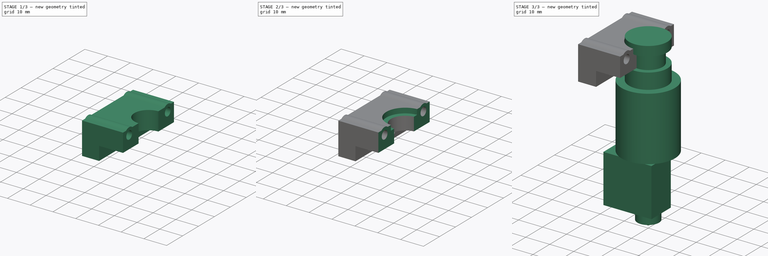
[diagram: build sequence overview — one tinted view per stage of 3, left to right]
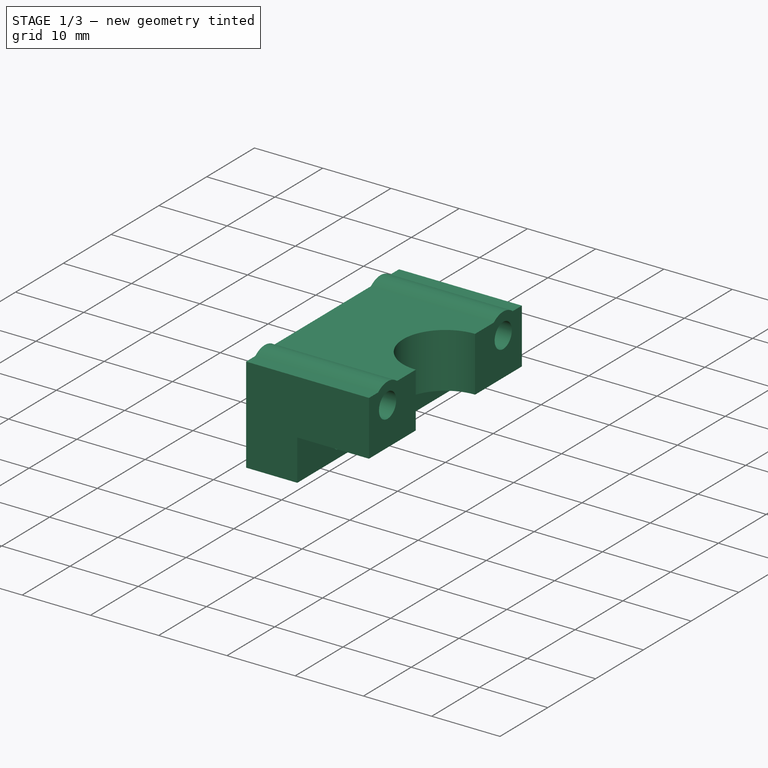
[diagram: stage 1 of 3 — iso view after this stage's code; geometry added in this stage tinted green]
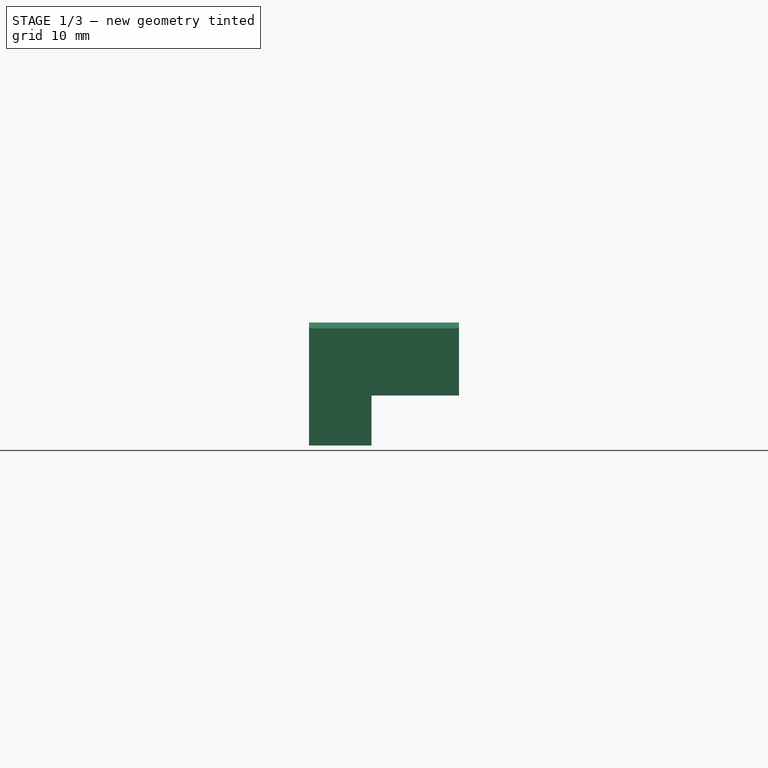
[diagram: stage 1 of 3 — front view after this stage's code; geometry added in this stage tinted green]
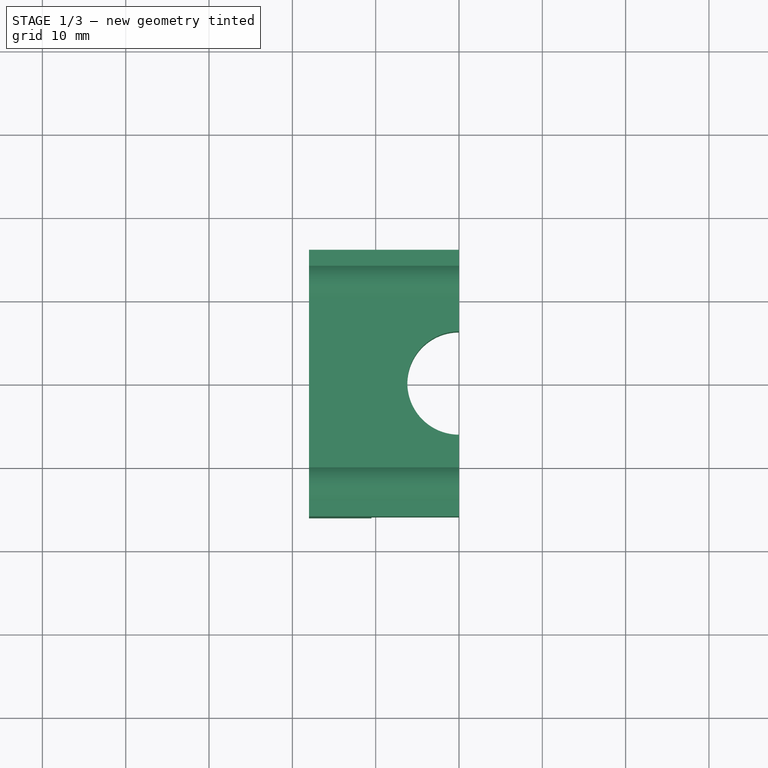
[diagram: stage 1 of 3 — top view after this stage's code; geometry added in this stage tinted green]
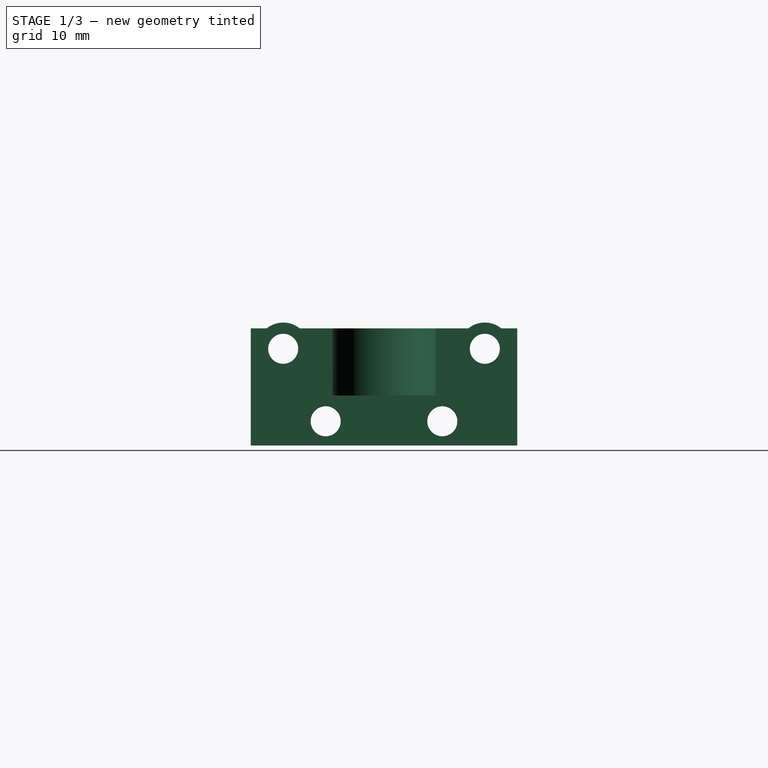
[diagram: stage 1 of 3 — right view after this stage's code; geometry added in this stage tinted green]
FCSTD DOCUMENT  (FreeCAD 0.20R29603 (Git))
Label: V6火山+5015方案
License: All rights reserved
LicenseURL: http://en.wikipedia.org/wiki/All_rights_reserved
objects: Part::Feature×13, Sketcher::SketchObject×7, PartDesign::Pocket×4, PartDesign::Pad×3, PartDesign::Body×2, PartDesign::Revolution×1, App::Part×1
note: 38 computed .brp shape members not serialized (recipe doc carries the construction recipe); baked Part::Feature solids carry a one-line shape summary decoded from their .brp

FEATURE [PartDesign::Body] Body002  label="E3DV6火山（玻璃热敏）"
  Group = -> [Sketch015,Revolution,Sketch016,Pad006,Pad007]
  Origin = -> Origin002
  Tip = -> Pad007
FEATURE [Part::Feature] Part__Feature166  label="<unrecoverable-encoding: 13 bytes cea2d18dd09ecebbbfaab9d6... md5=9adbc4b6>A125V003"
  Placement = pos=(23.9,-14.5,21.31) rot=(0,0,-1;1.5708rad)
  shape: bbox 13.5 x 14.59 x 5.62 mm, 42 faces (baked)
FEATURE [Part::Feature] Part__Feature167  label="MGN12H»¬¿002"
  Placement = pos=(0,-19,0) rot=(0,-1,0;1.5708rad)
  shape: bbox 45.4 x 10 x 27 mm, 34 faces (baked)
FEATURE [Part::Feature] Part__Feature169  label="ɢɈ¹ܰ²װ°"
  Placement = pos=(0,-19.5,16.5) rot=(0,0,1;0rad)
  shape: bbox 54 x 39 x 4 mm, 68 faces (baked)
FEATURE [Part::Feature] Part__Feature172  label="同步带压片"
  Placement = pos=(-16,-29,21) rot=(0,0,1;0rad)
  shape: bbox 8 x 16 x 3 mm, 12 faces (baked)
FEATURE [Part::Feature] Part__Feature173  label="同步带压片001"
  Placement = pos=(16,-29,21) rot=(0,1,0;3.14159rad)
  shape: bbox 8 x 16 x 3 mm, 12 faces (baked)
FEATURE [Part::Feature] Part__Feature174  label="42步进电机004"
  Placement = pos=(-3.675,23.5,12) rot=(0,0,1;0rad)
  shape: bbox 42.3 x 44.3 x 62 mm, 50 faces (baked)
FEATURE [Part::Feature] Part__Feature175  label="42步进电机支架"
  Placement = pos=(-3.675,23.5,14) rot=(0,0,1;0rad)
  shape: bbox 63 x 45 x 40 mm, 42 faces (baked)
FEATURE [Part::Feature] Part__Feature176  label="MGN12H滑筷棯接颁灅住"
  Placement = pos=(0,0,0) rot=(0.57735,-0.57735,-0.57735;2.0944rad)
  shape: bbox 63 x 6 x 28 mm, 64 faces (baked)
FEATURE [Part::Feature] Part__Feature177  label="BMG挤出机"
  Placement = pos=(0,2.35,36.5) rot=(0,0,1;0rad)
  shape: bbox 58 x 75 x 33.5 mm, 84 faces (baked)
FEATURE [Part::Feature] Part__Feature179  label="内六角平圆头螺钉M3¡Á029"
  Placement = pos=(0,-3,18.5) rot=(1,0,0;1.5708rad)
  shape: bbox 6.17 x 6.17 x 12.2 mm, 24 faces (baked)
FEATURE [Part::Feature] Part__Feature180  label="内六角平圆头螺钉M3¡Á030"
  Placement = pos=(15,-3,18.5) rot=(1,0,0;1.5708rad)
  shape: bbox 6.17 x 6.17 x 12.2 mm, 24 faces (baked)
FEATURE [Part::Feature] Part__Feature178  label="内六角平圆头螺钉M3¡Á028"
  Placement = pos=(-15,-3,18.5) rot=(1,0,0;1.5708rad)
  shape: bbox 6.17 x 6.17 x 12.2 mm, 24 faces (baked)
FEATURE [App::Part] CR10________________________1  label="CR10近程喷嘴模块1"
  Group = -> [Part__Feature166,Part__Feature167,Part__Feature169,Part__Feature172,Part__Feature173,Part__Feature174,Part__Feature175,Part__Feature176,Part__Feature177,Part__Feature178,Part__Feature179,Part__Feature180]
  Origin = -> Origin006
  Placement = pos=(-36.5,0,8.1) rot=(0.57735,0.57735,0.57735;2.0944rad)
FEATURE [Sketcher::SketchObject] Sketch017
  FullyConstrained = true
  MapMode = 5
  Placement = pos=(0,0,0) rot=(0.57735,0.57735,0.57735;2.0944rad)
  Support = -> [YZ_Plane007]
  sketch-geometry (18):
    g0: LineSegment StartX=-16 StartY=2.25 StartZ=0 EndX=-16 EndY=0 EndZ=0
    g1: LineSegment StartX=-16 StartY=0 StartZ=0 EndX=-16 EndY=-5.8 EndZ=0
    g2: LineSegment StartX=-16 StartY=-5.8 StartZ=0 EndX=-16 EndY=-11.8 EndZ=0
    g3: LineSegment StartX=-16 StartY=-11.8 StartZ=0 EndX=16 EndY=-11.8 EndZ=0
    g4: LineSegment StartX=16 StartY=-11.8 StartZ=0 EndX=16 EndY=-5.8 EndZ=0
    g5: LineSegment StartX=16 StartY=-5.8 StartZ=0 EndX=16 EndY=0 EndZ=0
    g6: LineSegment StartX=16 StartY=0 StartZ=0 EndX=16 EndY=2.25 EndZ=0
    g7: Circle CenterX=-7 CenterY=-8.9 CenterZ=0 NormalX=0 NormalY=0 NormalZ=1 AngleXU=0 Radius=1.8
    g8: Circle CenterX=7 CenterY=-8.9 CenterZ=0 NormalX=0 NormalY=0 NormalZ=1 AngleXU=0 Radius=1.8
    g9: Circle CenterX=-12.1 CenterY=-0.2 CenterZ=0 NormalX=0 NormalY=0 NormalZ=1 AngleXU=0 Radius=1.8
    g10: Circle CenterX=12.1 CenterY=-0.2 CenterZ=0 NormalX=0 NormalY=0 NormalZ=1 AngleXU=0 Radius=1.8
    g11: ArcOfCircle CenterX=-12.1 CenterY=-0.2 CenterZ=0 NormalX=0 NormalY=0 NormalZ=1 AngleXU=0 Radius=3.15 StartAngle=0.891123 EndAngle=2.25047
    g12: ArcOfCircle CenterX=12.1 CenterY=-0.2 CenterZ=0 NormalX=0 NormalY=0 NormalZ=1 AngleXU=0 Radius=3.15 StartAngle=0.891123 EndAngle=2.25047
    g13: LineSegment StartX=-14.0799 StartY=2.25 StartZ=0 EndX=-16 EndY=2.25 EndZ=0
    g14: LineSegment StartX=10.1201 StartY=2.25 StartZ=0 EndX=-10.1201 EndY=2.25 EndZ=0
    g15: LineSegment StartX=14.0799 StartY=2.25 StartZ=0 EndX=16 EndY=2.25 EndZ=0
    g16: LineSegment StartX=10.1201 StartY=2.25 StartZ=0 EndX=14.0799 EndY=2.25 EndZ=0
    g17: LineSegment StartX=-14.0799 StartY=2.25 StartZ=0 EndX=-10.1201 EndY=2.25 EndZ=0
  constraints (49):
    c: Vertical(g0)
    c: Coincident(g0,g1)
    c: Vertical(g1)
    c: Coincident(g1,g2)
    c: Vertical(g2)
    c: Coincident(g2,g3)
    c: Coincident(g3,g4)
    c: Vertical(g4)
    c: Coincident(g4,g5)
    c: Vertical(g5)
    c: Coincident(g5,g6)
    c: Vertical(g6)
    c: Coincident(g13,g0)
    c: Equal(g2,g4)
    c: Equal(g5,g1)
    c: Symmetric(g3,g2,g-2)
    c: PointOnObject(g5,g-1)
    c: Distance(g5) = 5.8
    c: Distance(g4) = 6
    c: Equal(g8,g7)
    c: Symmetric(g8,g7,g-2)
    c: Distance(g7,g8) = 14
    c: Diameter(g8) = 3.6
    c: Distance(g8,g3) = 2.9
    c: Symmetric(g10,g9,g-2)
    c: Equal(g10,g9)
    c: Distance(g10,g9) = 24.2
    c: Diameter(g10) = 3.6
    c: DistanceY(g8,g10) = 8.7
    c: Distance(g0) = 2.25
    c: Coincident(g11,g9)
    c: Coincident(g12,g10)
    c: Equal(g12,g11)
    c: Diameter(g12) = 6.3
    c: Coincident(g14,g11)
    c: Coincident(g14,g12)
    c: Distance(g0,g6) = 32
    c: Equal(g6,g0)
    c: Coincident(g15,g12)
    c: Coincident(g15,g6)
    c: Horizontal(g15)
    c: Horizontal(g13)
    c: Coincident(g16,g12)
    c: Coincident(g16,g12)
    c: Horizontal(g16)
    c: Coincident(g17,g11)
    c: Coincident(g17,g11)
    c: Horizontal(g17)
    c: Coincident(g11,g13)
FEATURE [PartDesign::Pad] Pad008
  Direction = (1,-2e-16,3e-16)
  Length = 18
  Length2 = 10
  Placement = pos=(0,0,0) rot=(0.57735,0.57735,0.57735;2.0944rad)
  Profile = -> Sketch017
  ReferenceAxis = -> Sketch017 [N_Axis]
  Reversed = true
  Type = 0
FEATURE [Sketcher::SketchObject] Sketch018
  ExternalGeometry = -> [Pad008]
  FullyConstrained = true
  MapMode = 5
  Placement = pos=(0,0,0) rot=(0.57735,0.57735,0.57735;2.0944rad)
  Support = -> [Pad008]
  sketch-geometry (4):
    g0: LineSegment StartX=-16 StartY=-5.8 StartZ=0 EndX=16 EndY=-5.8 EndZ=0
    g1: LineSegment StartX=16 StartY=-5.8 StartZ=0 EndX=16 EndY=-11.8 EndZ=0
    g2: LineSegment StartX=16 StartY=-11.8 StartZ=0 EndX=-16 EndY=-11.8 EndZ=0
    g3: LineSegment StartX=-16 StartY=-11.8 StartZ=0 EndX=-16 EndY=-5.8 EndZ=0
  constraints (11):
    c: Coincident(g0,g1)
    c: Coincident(g1,g2)
    c: Coincident(g2,g3)
    c: Coincident(g3,g0)
    c: Horizontal(g0)
    c: Horizontal(g2)
    c: Vertical(g1)
    c: Vertical(g3)
    c: Coincident(g-3,g1)
    c: Equal(g2,g-3)
    c: Distance(g1) = 6
FEATURE [PartDesign::Pocket] Pocket
  BaseFeature = -> Pad008
  Direction = (-1,4e-16,-4e-16)
  Length = 10.5
  Length2 = 5
  Placement = pos=(0,0,0) rot=(0.57735,0.57735,0.57735;2.0944rad)
  Profile = -> Sketch018
  ReferenceAxis = -> Sketch018 [N_Axis]
  Type = 0
FEATURE [Sketcher::SketchObject] Sketch019
  ExternalGeometry = -> [Pocket]
  FullyConstrained = true
  MapMode = 5
  Placement = pos=(-6e-16,1e-15,2.25) rot=(0,0,-1;1.5708rad)
  Support = -> [Pocket]
  sketch-geometry (2):
    g0: ArcOfCircle CenterX=0 CenterY=2e-15 CenterZ=0 NormalX=0 NormalY=0 NormalZ=1 AngleXU=0 Radius=6.2 StartAngle=3.14159 EndAngle=6.28319
    g1: LineSegment StartX=-6.2 StartY=2.8e-15 StartZ=0 EndX=6.2 EndY=5e-16 EndZ=0
  constraints (7):
    c: PointOnObject(g0,g-2)
    c: PointOnObject(g0,g-3)
    c: PointOnObject(g0,g-3)
    c: PointOnObject(g0,g-3)
    c: Coincident(g1,g0)
    c: Coincident(g1,g0)
    c: Diameter(g0) = 12.4
FEATURE [PartDesign::Pocket] Pocket001
  BaseFeature = -> Pocket
  Direction = (7e-16,-7e-16,-1)
  Length = 5
  Length2 = 5
  Placement = pos=(0,0,0) rot=(0.57735,0.57735,0.57735;2.0944rad)
  Profile = -> Sketch019
  ReferenceAxis = -> Sketch019 [N_Axis]
  Type = 1
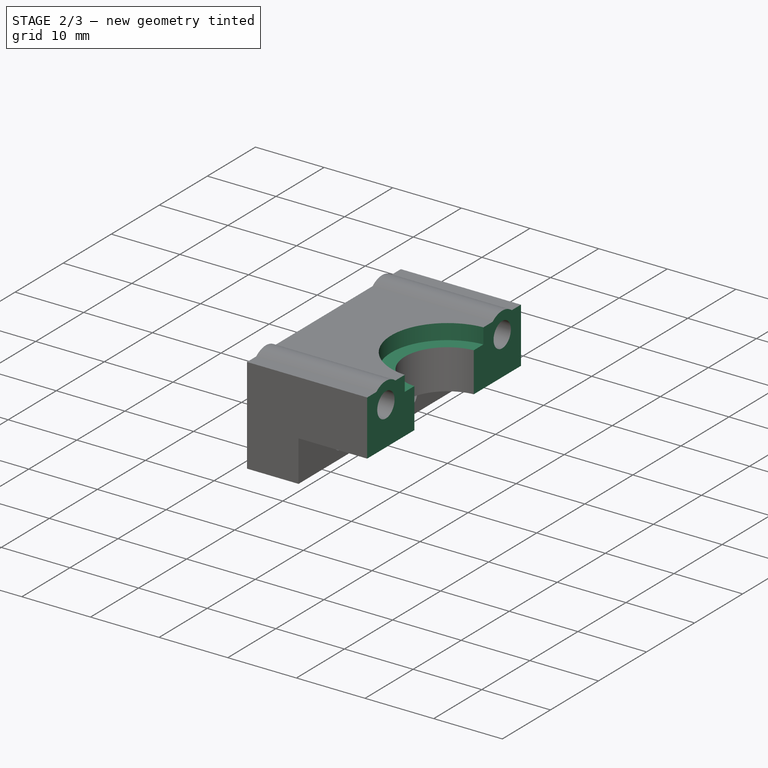
[diagram: stage 2 of 3 — iso view after this stage's code; geometry added in this stage tinted green]
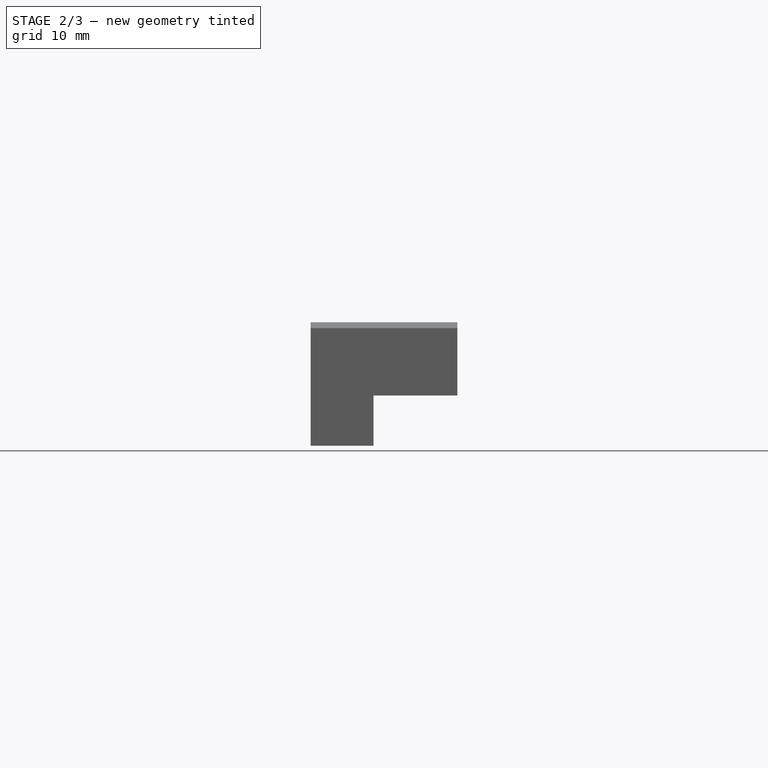
[diagram: stage 2 of 3 — front view after this stage's code; geometry added in this stage tinted green]
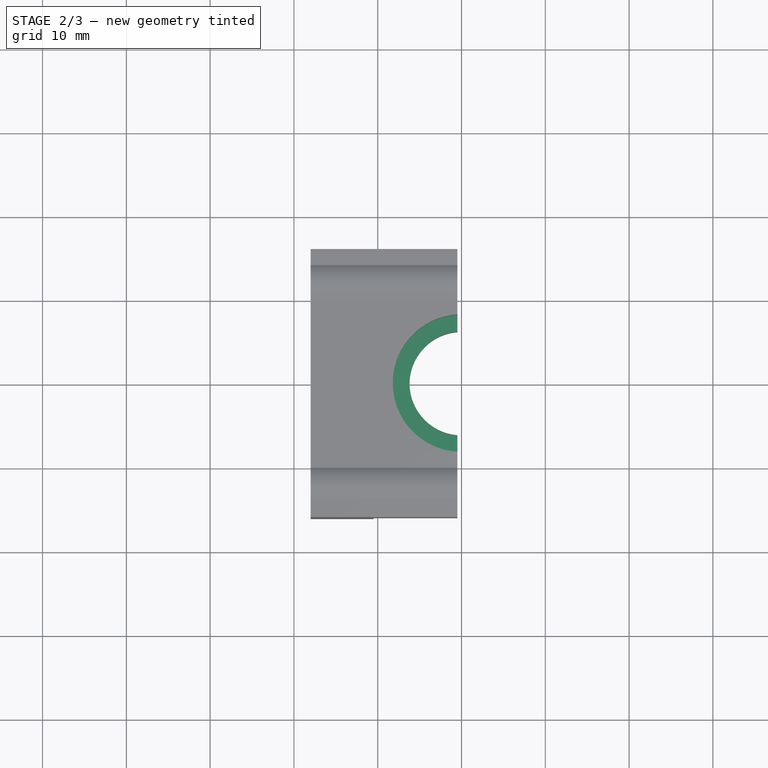
[diagram: stage 2 of 3 — top view after this stage's code; geometry added in this stage tinted green]
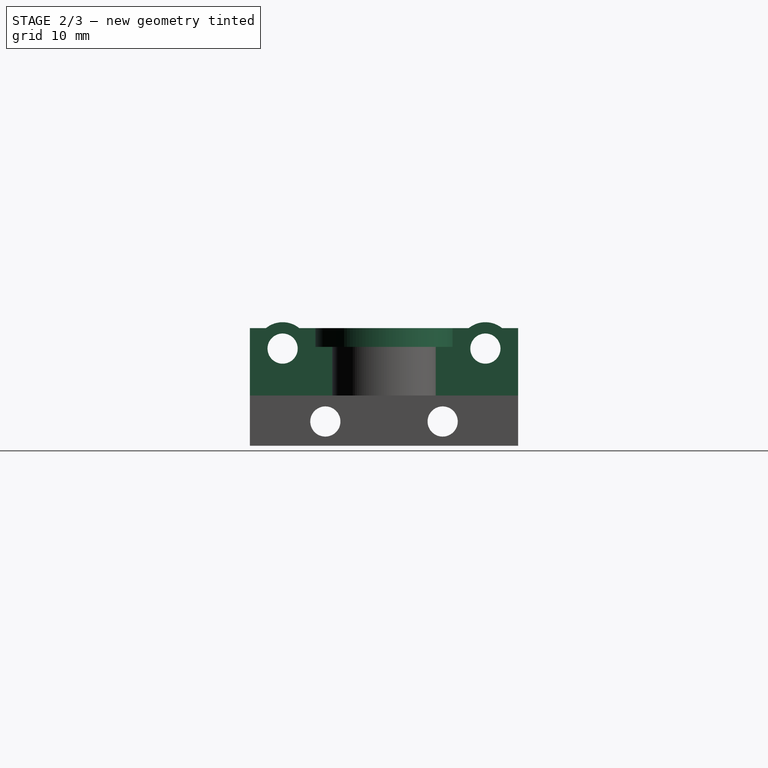
[diagram: stage 2 of 3 — right view after this stage's code; geometry added in this stage tinted green]
FEATURE [Sketcher::SketchObject] Sketch020
  ExternalGeometry = -> [Pocket001]
  FullyConstrained = true
  MapMode = 5
  Placement = pos=(-6e-16,1e-15,2.25) rot=(0,0,-1;1.5708rad)
  Support = -> [Pocket001]
  sketch-geometry (3):
    g0: LineSegment StartX=-6.2 StartY=2.4e-15 StartZ=0 EndX=6.2 EndY=-1.1e-15 EndZ=0
    g1: ArcOfCircle CenterX=0 CenterY=6e-16 CenterZ=0 NormalX=0 NormalY=0 NormalZ=1 AngleXU=0 Radius=8.2 StartAngle=3.14159 EndAngle=6.28319
    g2: LineSegment StartX=-8.2 StartY=2.9e-15 StartZ=0 EndX=8.2 EndY=-1.4e-15 EndZ=0
  constraints (9):
    c: Coincident(g0,g-4)
    c: Coincident(g0,g-3)
    c: PointOnObject(g1,g-2)
    c: PointOnObject(g1,g-3)
    c: PointOnObject(g1,g-4)
    c: PointOnObject(g1,g0)
    c: Diameter(g1) = 16.4
    c: Coincident(g2,g1)
    c: Coincident(g2,g1)
FEATURE [PartDesign::Pocket] Pocket002
  BaseFeature = -> Pocket001
  Direction = (1.1e-15,-8e-16,-1)
  Length = 2.25
  Length2 = 5
  Placement = pos=(0,0,0) rot=(0.57735,0.57735,0.57735;2.0944rad)
  Profile = -> Sketch020
  ReferenceAxis = -> Sketch020 [N_Axis]
  Type = 0
FEATURE [Sketcher::SketchObject] Sketch
  FullyConstrained = true
  MapMode = 5
  Placement = pos=(0,0,0) rot=(0.57735,0.57735,0.57735;2.0944rad)
  Support = -> [Pocket002]
  sketch-geometry (4):
    g0: LineSegment StartX=-19.6231 StartY=8.25432 StartZ=0 EndX=19.6394 EndY=8.25432 EndZ=0
    g1: LineSegment StartX=19.6394 StartY=8.25432 StartZ=0 EndX=19.6394 EndY=-15.6805 EndZ=0
    g2: LineSegment StartX=19.6394 StartY=-15.6805 StartZ=0 EndX=-19.6231 EndY=-15.6805 EndZ=0
    g3: LineSegment StartX=-19.6231 StartY=-15.6805 StartZ=0 EndX=-19.6231 EndY=8.25432 EndZ=0
  constraints (12):
    c: Coincident(g0,g1)
    c: Coincident(g1,g2)
    c: Coincident(g2,g3)
    c: Coincident(g3,g0)
    c: Horizontal(g0)
    c: Horizontal(g2)
    c: Vertical(g1)
    c: Vertical(g3)
    c: DistanceX(g0) = -19.6231
    c: DistanceY(g0) = 8.25432
    c: DistanceX(g1) = 19.6394
    c: DistanceY(g1) = -15.6805
FEATURE [PartDesign::Pocket] Pocket003
  BaseFeature = -> Pocket002
  Direction = (-1,1.1e-15,-7e-16)
  Length = 0.5
  Length2 = 5
  Placement = pos=(0,0,0) rot=(0.57735,0.57735,0.57735;2.0944rad)
  Profile = -> Sketch
  ReferenceAxis = -> Sketch [N_Axis]
  Type = 0
FEATURE [PartDesign::Body] Body003  label="贴墙端"
  Group = -> [Sketch017,Pad008,Sketch018,Pocket,Sketch019,Pocket001,Sketch020,Pocket002,Sketch,Pocket003]
  Origin = -> Origin007
  Tip = -> Pocket003
FEATURE [Part::Feature] Part__Feature  label="5015µ¼·耚"
  Placement = pos=(22.5,0,-13.2) rot=(0.57735,0.57735,0.57735;2.0944rad)
  shape: bbox 38.35 x 55 x 131 mm, 194 faces (baked)
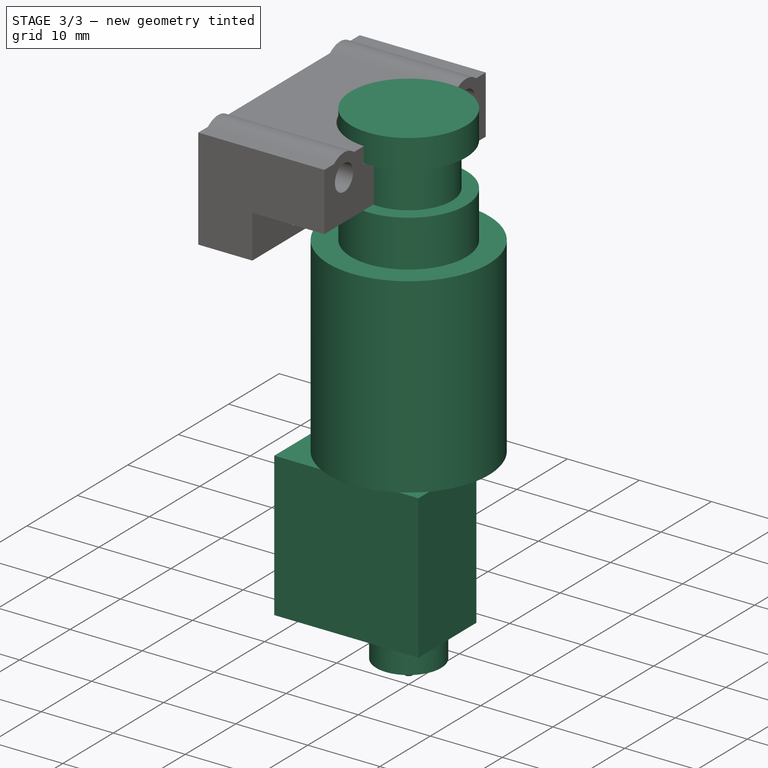
[diagram: stage 3 of 3 — iso view after this stage's code; geometry added in this stage tinted green]
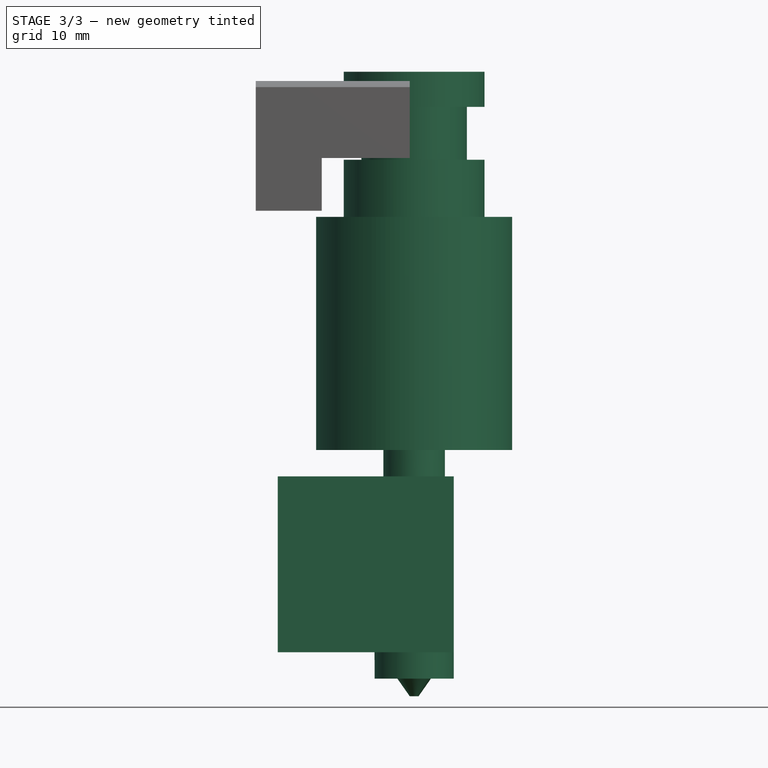
[diagram: stage 3 of 3 — front view after this stage's code; geometry added in this stage tinted green]
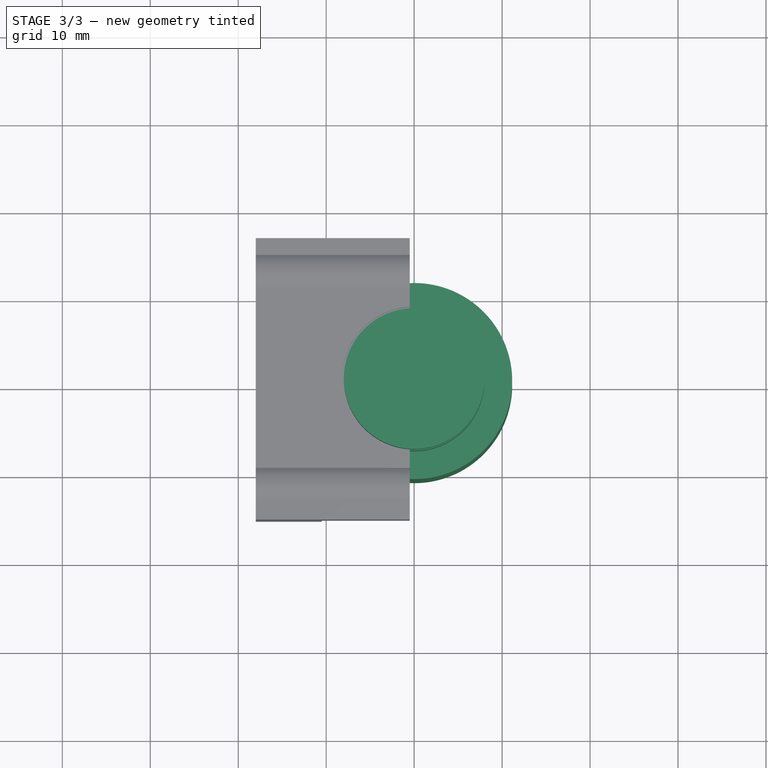
[diagram: stage 3 of 3 — top view after this stage's code; geometry added in this stage tinted green]
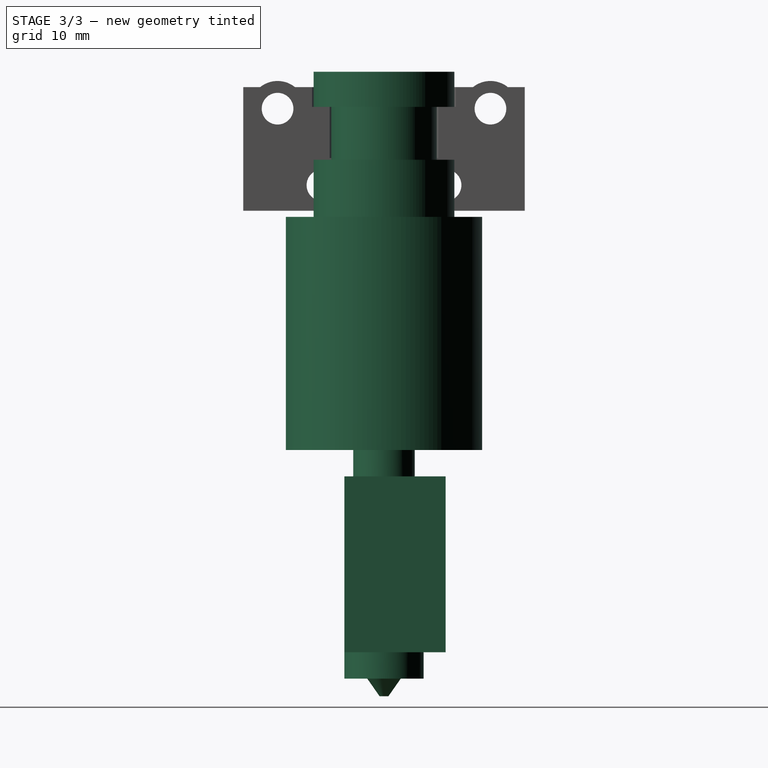
[diagram: stage 3 of 3 — right view after this stage's code; geometry added in this stage tinted green]
FEATURE [Sketcher::SketchObject] Sketch015
  FullyConstrained = true
  MapMode = 5
  Placement = pos=(0,0,0) rot=(0.57735,0.57735,0.57735;2.0944rad)
  Support = -> [YZ_Plane002]
  sketch-geometry (17):
    g0: LineSegment StartX=0 StartY=4 StartZ=0 EndX=8 EndY=4 EndZ=0
    g1: LineSegment StartX=8 StartY=4 StartZ=0 EndX=8 EndY=0 EndZ=0
    g2: LineSegment StartX=8 StartY=0 StartZ=0 EndX=6 EndY=0 EndZ=0
    g3: LineSegment StartX=6 StartY=0 StartZ=0 EndX=6 EndY=-6 EndZ=0
    g4: LineSegment StartX=6 StartY=-6 StartZ=0 EndX=8 EndY=-6 EndZ=0
    g5: LineSegment StartX=8 StartY=-6 StartZ=0 EndX=8 EndY=-12.5 EndZ=0
    g6: LineSegment StartX=8 StartY=-12.5 StartZ=0 EndX=11.15 EndY=-12.5 EndZ=0
    g7: LineSegment StartX=11.15 StartY=-12.5 StartZ=0 EndX=11.15 EndY=-39 EndZ=0
    g8: LineSegment StartX=11.15 StartY=-39 StartZ=0 EndX=3.5 EndY=-39 EndZ=0
    g9: LineSegment StartX=0.5 StartY=-67 StartZ=0 EndX=0 EndY=-67 EndZ=0
    g10: LineSegment StartX=3.5 StartY=-39 StartZ=0 EndX=3.5 EndY=-62 EndZ=0
    g11: LineSegment StartX=0 StartY=4 StartZ=0 EndX=0 EndY=-67 EndZ=0
    g12: GeomPoint X=3.5 Y=-42 Z=0
    g13: LineSegment StartX=3.5 StartY=-62 StartZ=0 EndX=4.5 EndY=-62 EndZ=0
    g14: LineSegment StartX=4.5 StartY=-62 StartZ=0 EndX=4.5 EndY=-65 EndZ=0
    g15: LineSegment StartX=4.5 StartY=-65 StartZ=0 EndX=1.90042 EndY=-65 EndZ=0
    g16: LineSegment StartX=1.90042 StartY=-65 StartZ=0 EndX=0.5 EndY=-67 EndZ=0
  constraints (50):
    c: PointOnObject(g0,g-2)
    c: Horizontal(g0)
    c: Coincident(g1,g0)
    c: Vertical(g1)
    c: Coincident(g2,g1)
    c: Coincident(g3,g2)
    c: Coincident(g4,g3)
    c: Horizontal(g4)
    c: Horizontal(g2)
    c: Distance(g0) = 8
    c: Distance(g1) = 4
    c: Distance(g3) = 6
    c: Distance(g2) = 2
    c: Distance(g4) = 2
    c: Coincident(g5,g4)
    c: Horizontal(g6)
    c: Coincident(g7,g6)
    c: Vertical(g7)
    c: Vertical(g5)
    c: Coincident(g6,g5)
    c: DistanceX(g-2,g6) = 11.15
    c: Coincident(g8,g7)
    c: Horizontal(g8)
    c: DistanceX(g-2,g8) = 3.5
    c: DistanceY(g7,g0) = 43
    c: Distance(g5) = 6.5
    c: PointOnObject(g9,g-2)
    c: Horizontal(g9)
    c: Distance(g9) = 0.5
    c: Coincident(g10,g8)
    c: Vertical(g10)
    c: Coincident(g11,g0)
    c: Coincident(g11,g9)
    c: Vertical(g3)
    c: PointOnObject(g2,g-1)
    c: PointOnObject(g12,g10)
    c: Distance(g12,g8) = 3
    c: Distance(g12,g10) = 20
    c: Coincident(g10,g13)
    c: Horizontal(g13)
    c: Coincident(g13,g14)
    c: Vertical(g14)
    c: Coincident(g14,g15)
    c: Horizontal(g15)
    c: Coincident(g15,g16)
    c: Coincident(g16,g9)
    c: Angle(g16,g15) = 2.18166
    c: Distance(g13) = 1
    c: DistanceY(g9,g13) = 5
    c: Distance(g14) = 3
FEATURE [PartDesign::Revolution] Revolution
  Angle = 360
  Axis = (-2e-16,3e-16,1)
  Base = (0,0,0)
  Placement = pos=(0,0,0) rot=(0.57735,0.57735,0.57735;2.0944rad)
  Profile = -> Sketch015
  ReferenceAxis = -> Sketch015 [V_Axis]
  Reversed = true
FEATURE [Sketcher::SketchObject] Sketch016
  ExternalGeometry = -> [Revolution]
  FullyConstrained = true
  MapMode = 5
  Placement = pos=(0,0,0) rot=(1,0,0;1.5708rad)
  Support = -> [XZ_Plane002]
  sketch-geometry (6):
    g0: LineSegment StartX=-3.5 StartY=-62 StartZ=0 EndX=-15.5 EndY=-62 EndZ=0
    g1: LineSegment StartX=-15.5 StartY=-62 StartZ=0 EndX=-15.5 EndY=-42 EndZ=0
    g2: LineSegment StartX=-15.5 StartY=-42 StartZ=0 EndX=4.5 EndY=-42 EndZ=0
    g3: LineSegment StartX=4.5 StartY=-42 StartZ=0 EndX=4.5 EndY=-62 EndZ=0
    g4: LineSegment StartX=4.5 StartY=-62 StartZ=0 EndX=3.5 EndY=-62 EndZ=0
    g5: LineSegment StartX=-3.5 StartY=-62 StartZ=0 EndX=3.5 EndY=-62 EndZ=0
  constraints (16):
    c: Coincident(g0,g-3)
    c: Horizontal(g0)
    c: Coincident(g1,g0)
    c: Vertical(g1)
    c: Coincident(g2,g1)
    c: Horizontal(g2)
    c: Coincident(g3,g2)
    c: Vertical(g3)
    c: Coincident(g4,g3)
    c: Coincident(g4,g-3)
    c: Horizontal(g4)
    c: Distance(g3) = 20
    c: Distance(g1,g2) = 20
    c: DistanceX(g-2,g0) = -15.5
    c: Coincident(g5,g0)
    c: Coincident(g5,g4)
FEATURE [PartDesign::Pad] Pad006  label="薄"
  BaseFeature = -> Revolution
  Direction = (0,-1,-2e-16)
  Length = 4.5
  Length2 = 10
  Placement = pos=(0,0,0) rot=(0.57735,0.57735,0.57735;2.0944rad)
  Profile = -> Sketch016
  ReferenceAxis = -> Sketch016 [N_Axis]
  Type = 0
FEATURE [PartDesign::Pad] Pad007  label="厚"
  BaseFeature = -> Pad006
  Direction = (0,-1,-2e-16)
  Length = 7
  Length2 = 10
  Placement = pos=(0,0,0) rot=(0.57735,0.57735,0.57735;2.0944rad)
  Profile = -> Sketch016
  ReferenceAxis = -> Sketch016 [N_Axis]
  Reversed = true
  Type = 0
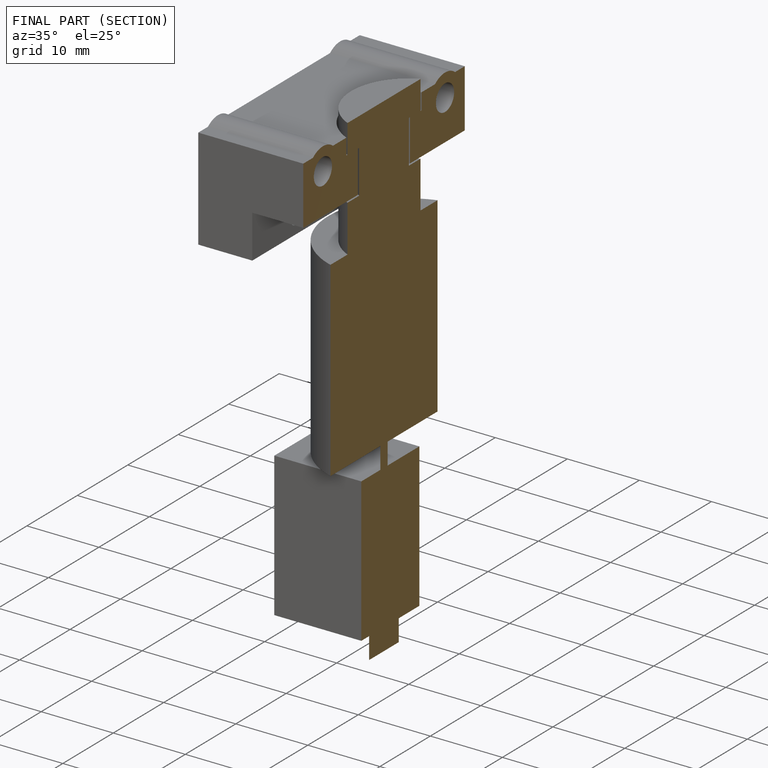
[diagram: finished part — half-section view (interior)]
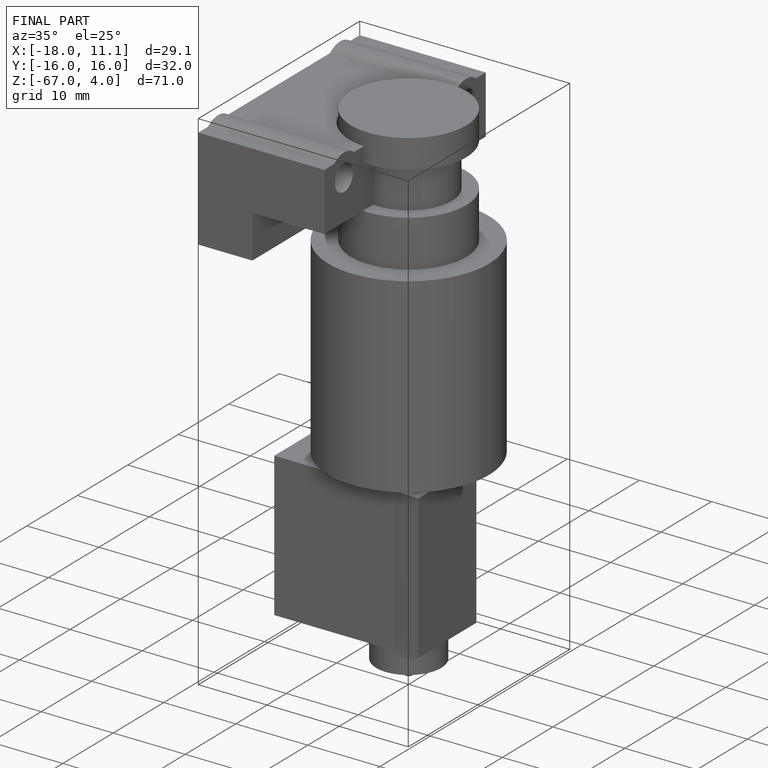
[diagram: finished part — iso view with bounding-box wireframe]
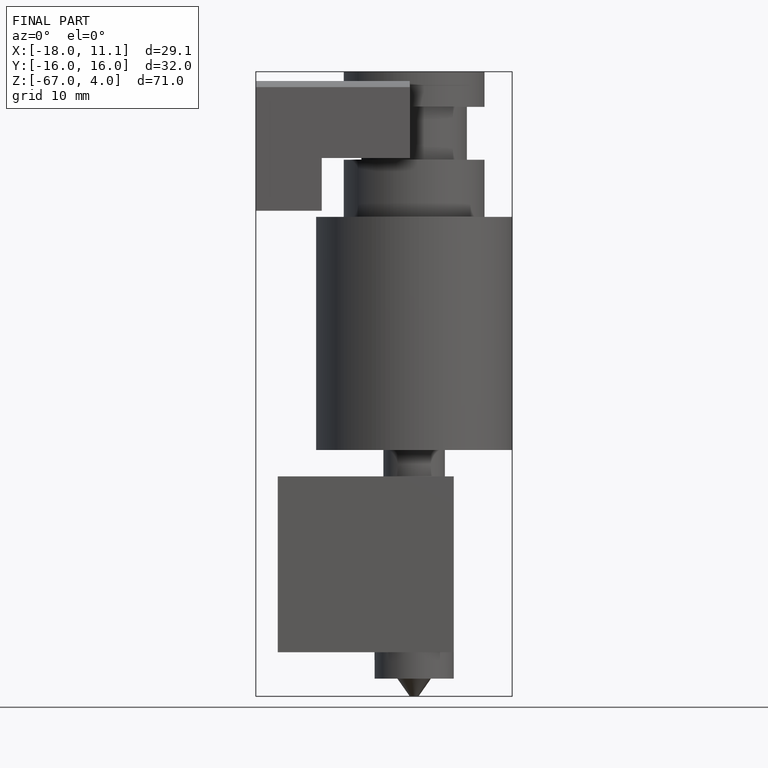
[diagram: finished part — front view with bounding-box wireframe]
